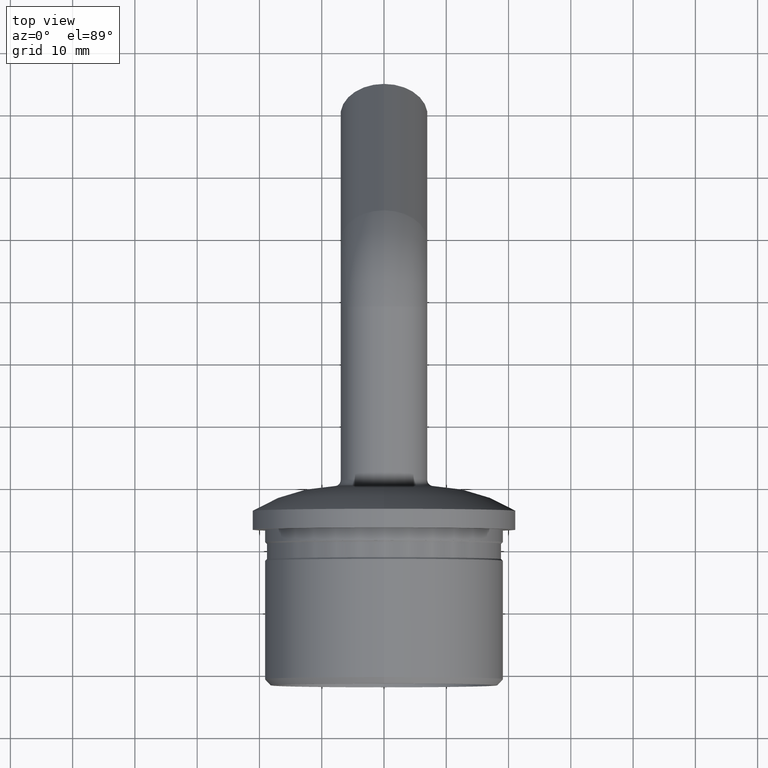
[diagram: clean part render]
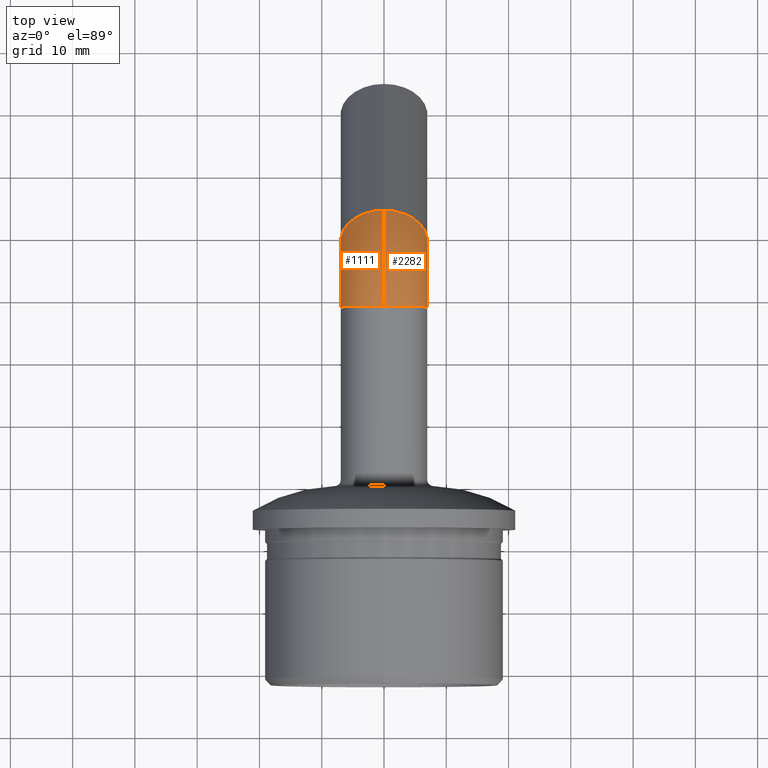
[diagram: same view with one multi-face feature highlighted, each face labeled with its STEP entity id]
A machine part, top view. The highlighted faces form ONE feature: a constant-radius fillet chain: 2 tangent blend faces with common blend radius 7 mm. The faces share edges in the B-rep.
Their STEP definitions:
[1] entity #1111 (Torus):
#186 = DIRECTION ( 'NONE',  ( 0.000000000000000000, 1.000000000000000000, 0.000000000000000000 ) ) ;
#467 = AXIS2_PLACEMENT_3D ( 'NONE', #2112, #10286, #10080 ) ;
#845 = CARTESIAN_POINT ( 'NONE',  ( 0.000000000000000000, 39.34239089442834825, -4.386792452830228228 ) ) ;
#1111 = ADVANCED_FACE ( 'NONE', ( #12264 ), #8710, .T. ) ;
#1157 = AXIS2_PLACEMENT_3D ( 'NONE', #6007, #186, #2431 ) ;
#1223 = VERTEX_POINT ( 'NONE', #4153 ) ;
#1408 = ORIENTED_EDGE ( 'NONE', *, *, #3664, .F. ) ;
#1455 = CIRCLE ( 'NONE', #467, 8.000000000000000000 ) ;
#2067 = DIRECTION ( 'NONE',  ( 0.000000000000000000, 0.000000000000000000, 1.000000000000000000 ) ) ;
#2112 = CARTESIAN_POINT ( 'NONE',  ( 8.572527594031473190E-16, 28.74239912270046915, -15.00000000000000000 ) ) ;
#2164 = ORIENTED_EDGE ( 'NONE', *, *, #11439, .T. ) ;
#2431 = DIRECTION ( 'NONE',  ( 0.000000000000000000, 0.000000000000000000, 1.000000000000000000 ) ) ;
#2456 = ORIENTED_EDGE ( 'NONE', *, *, #4224, .T. ) ;
#2848 = CIRCLE ( 'NONE', #1157, 7.000000000000000000 ) ;
#3196 = CARTESIAN_POINT ( 'NONE',  ( 0.000000000000000000, 28.74239912270046915, -15.00000000000000000 ) ) ;
#3392 = CARTESIAN_POINT ( 'NONE',  ( 8.572527594031473190E-16, 28.74239912270041231, 7.000000000000000888 ) ) ;
#3568 = AXIS2_PLACEMENT_3D ( 'NONE', #12892, #11646, #4729 ) ;
#3664 = EDGE_CURVE ( 'NONE', #11437, #1223, #1455, .T. ) ;
#4153 = CARTESIAN_POINT ( 'NONE',  ( 8.572527594031473190E-16, 34.39572806762198809, -9.339622641509434331 ) ) ;
#4224 = EDGE_CURVE ( 'NONE', #11437, #12604, #2848, .T. ) ;
#4729 = DIRECTION ( 'NONE',  ( 0.000000000000000000, 0.000000000000000000, 1.000000000000000000 ) ) ;
#6007 = CARTESIAN_POINT ( 'NONE',  ( 0.000000000000000000, 28.74239912270041231, 7.133037242339410149E-16 ) ) ;
#6284 = CIRCLE ( 'NONE', #3568, 22.00000000000000000 ) ;
#6500 = DIRECTION ( 'NONE',  ( 0.000000000000000000, 0.7075471698113150465, -0.7066661181151946414 ) ) ;
#8710 = TOROIDAL_SURFACE ( 'NONE', #8754, 15.00000000000000000, 7.000000000000000000 ) ;
#8754 = AXIS2_PLACEMENT_3D ( 'NONE', #3196, #14420, #2067 ) ;
#9297 = VERTEX_POINT ( 'NONE', #12321 ) ;
#9493 = EDGE_LOOP ( 'NONE', ( #2456, #2164, #13905, #1408 ) ) ;
#10080 = DIRECTION ( 'NONE',  ( 0.000000000000000000, 0.000000000000000000, 1.000000000000000000 ) ) ;
#10150 = EDGE_CURVE ( 'NONE', #1223, #9297, #12745, .T. ) ;
#10286 = DIRECTION ( 'NONE',  ( -1.000000000000000000, -0.000000000000000000, -0.000000000000000000 ) ) ;
#11437 = VERTEX_POINT ( 'NONE', #12656 ) ;
#11439 = EDGE_CURVE ( 'NONE', #12604, #9297, #6284, .T. ) ;
#11646 = DIRECTION ( 'NONE',  ( -1.000000000000000000, -0.000000000000000000, -0.000000000000000000 ) ) ;
#12180 = DIRECTION ( 'NONE',  ( 0.000000000000000000, 0.7066661181151947524, 0.7075471698113149355 ) ) ;
#12264 = FACE_OUTER_BOUND ( 'NONE', #9493, .T. ) ;
#12321 = CARTESIAN_POINT ( 'NONE',  ( 0.000000000000000000, 44.28905372123471551, 0.5660377358489765420 ) ) ;
#12604 = VERTEX_POINT ( 'NONE', #3392 ) ;
#12656 = CARTESIAN_POINT ( 'NONE',  ( 0.000000000000000000, 28.74239912270041231, -6.999999999999999112 ) ) ;
#12745 = CIRCLE ( 'NONE', #13778, 7.000000000000000888 ) ;
#12892 = CARTESIAN_POINT ( 'NONE',  ( 0.000000000000000000, 28.74239912270046915, -15.00000000000000000 ) ) ;
#13778 = AXIS2_PLACEMENT_3D ( 'NONE', #845, #6500, #12180 ) ;
#13905 = ORIENTED_EDGE ( 'NONE', *, *, #10150, .F. ) ;
#14420 = DIRECTION ( 'NONE',  ( -1.000000000000000000, -0.000000000000000000, -0.000000000000000000 ) ) ;
[2] entity #2282 (Torus):
#467 = AXIS2_PLACEMENT_3D ( 'NONE', #2112, #10286, #10080 ) ;
#506 = DIRECTION ( 'NONE',  ( 0.000000000000000000, 0.7066661181151947524, 0.7075471698113149355 ) ) ;
#964 = CARTESIAN_POINT ( 'NONE',  ( 0.000000000000000000, 28.74239912270046915, -15.00000000000000000 ) ) ;
#1046 = ORIENTED_EDGE ( 'NONE', *, *, #4899, .F. ) ;
#1223 = VERTEX_POINT ( 'NONE', #4153 ) ;
#1455 = CIRCLE ( 'NONE', #467, 8.000000000000000000 ) ;
#2112 = CARTESIAN_POINT ( 'NONE',  ( 8.572527594031473190E-16, 28.74239912270046915, -15.00000000000000000 ) ) ;
#2282 = ADVANCED_FACE ( 'NONE', ( #13216 ), #4127, .T. ) ;
#3160 = AXIS2_PLACEMENT_3D ( 'NONE', #8480, #14321, #4106 ) ;
#3392 = CARTESIAN_POINT ( 'NONE',  ( 8.572527594031473190E-16, 28.74239912270041231, 7.000000000000000888 ) ) ;
#3568 = AXIS2_PLACEMENT_3D ( 'NONE', #12892, #11646, #4729 ) ;
#3664 = EDGE_CURVE ( 'NONE', #11437, #1223, #1455, .T. ) ;
#3810 = AXIS2_PLACEMENT_3D ( 'NONE', #964, #13563, #12312 ) ;
#4106 = DIRECTION ( 'NONE',  ( 0.000000000000000000, 0.000000000000000000, 1.000000000000000000 ) ) ;
#4127 = TOROIDAL_SURFACE ( 'NONE', #3810, 15.00000000000000000, 7.000000000000000000 ) ;
#4153 = CARTESIAN_POINT ( 'NONE',  ( 8.572527594031473190E-16, 34.39572806762198809, -9.339622641509434331 ) ) ;
#4729 = DIRECTION ( 'NONE',  ( 0.000000000000000000, 0.000000000000000000, 1.000000000000000000 ) ) ;
#4899 = EDGE_CURVE ( 'NONE', #9297, #1223, #12288, .T. ) ;
#6284 = CIRCLE ( 'NONE', #3568, 22.00000000000000000 ) ;
#6312 = DIRECTION ( 'NONE',  ( 0.000000000000000000, 0.7075471698113150465, -0.7066661181151946414 ) ) ;
#7304 = CARTESIAN_POINT ( 'NONE',  ( 0.000000000000000000, 39.34239089442834825, -4.386792452830228228 ) ) ;
#7681 = ORIENTED_EDGE ( 'NONE', *, *, #11439, .F. ) ;
#8480 = CARTESIAN_POINT ( 'NONE',  ( 0.000000000000000000, 28.74239912270041231, 7.133037242339410149E-16 ) ) ;
#9047 = EDGE_CURVE ( 'NONE', #12604, #11437, #12034, .T. ) ;
#9297 = VERTEX_POINT ( 'NONE', #12321 ) ;
#10047 = EDGE_LOOP ( 'NONE', ( #7681, #13927, #12248, #1046 ) ) ;
#10080 = DIRECTION ( 'NONE',  ( 0.000000000000000000, 0.000000000000000000, 1.000000000000000000 ) ) ;
#10286 = DIRECTION ( 'NONE',  ( -1.000000000000000000, -0.000000000000000000, -0.000000000000000000 ) ) ;
#10879 = AXIS2_PLACEMENT_3D ( 'NONE', #7304, #6312, #506 ) ;
#11437 = VERTEX_POINT ( 'NONE', #12656 ) ;
#11439 = EDGE_CURVE ( 'NONE', #12604, #9297, #6284, .T. ) ;
#11646 = DIRECTION ( 'NONE',  ( -1.000000000000000000, -0.000000000000000000, -0.000000000000000000 ) ) ;
#12034 = CIRCLE ( 'NONE', #3160, 7.000000000000000000 ) ;
#12248 = ORIENTED_EDGE ( 'NONE', *, *, #3664, .T. ) ;
#12288 = CIRCLE ( 'NONE', #10879, 7.000000000000000888 ) ;
#12312 = DIRECTION ( 'NONE',  ( 0.000000000000000000, 0.000000000000000000, 1.000000000000000000 ) ) ;
#12321 = CARTESIAN_POINT ( 'NONE',  ( 0.000000000000000000, 44.28905372123471551, 0.5660377358489765420 ) ) ;
#12604 = VERTEX_POINT ( 'NONE', #3392 ) ;
#12656 = CARTESIAN_POINT ( 'NONE',  ( 0.000000000000000000, 28.74239912270041231, -6.999999999999999112 ) ) ;
#12892 = CARTESIAN_POINT ( 'NONE',  ( 0.000000000000000000, 28.74239912270046915, -15.00000000000000000 ) ) ;
#13216 = FACE_OUTER_BOUND ( 'NONE', #10047, .T. ) ;
#13563 = DIRECTION ( 'NONE',  ( -1.000000000000000000, -0.000000000000000000, -0.000000000000000000 ) ) ;
#13927 = ORIENTED_EDGE ( 'NONE', *, *, #9047, .T. ) ;
#14321 = DIRECTION ( 'NONE',  ( 0.000000000000000000, 1.000000000000000000, 0.000000000000000000 ) ) ;